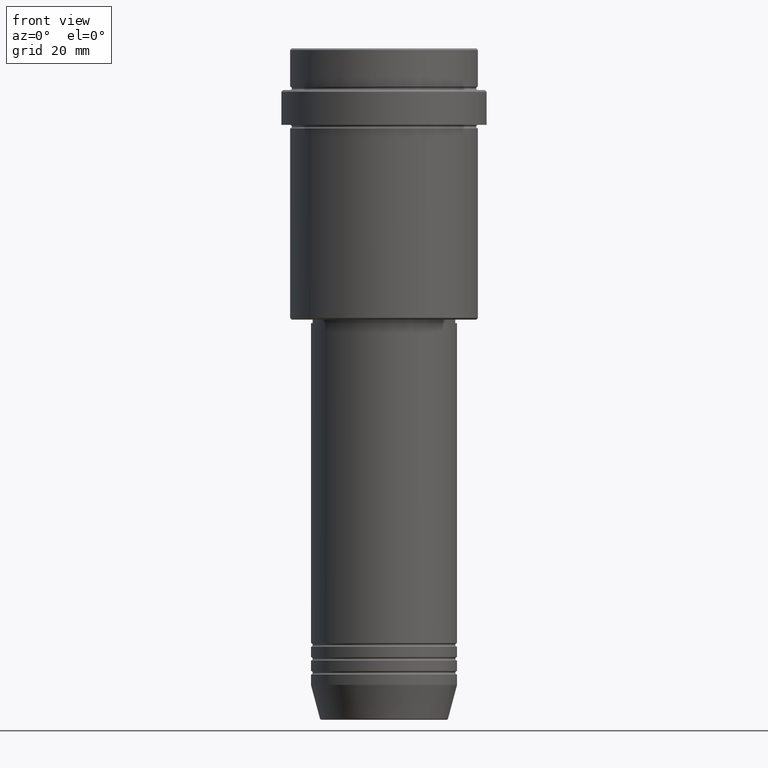
[diagram: clean part render]
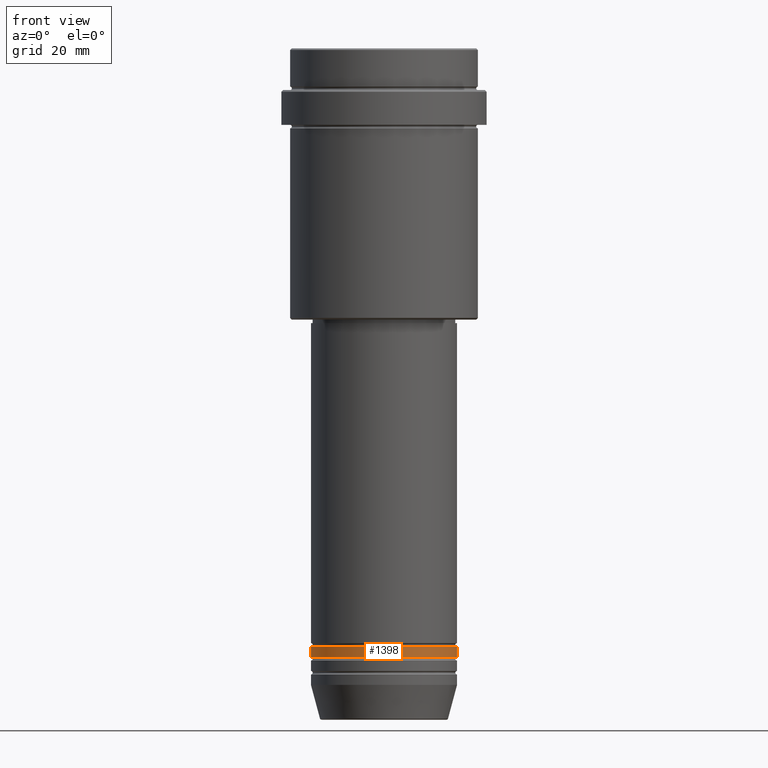
[diagram: same view with one face highlighted and labeled with its STEP entity id]
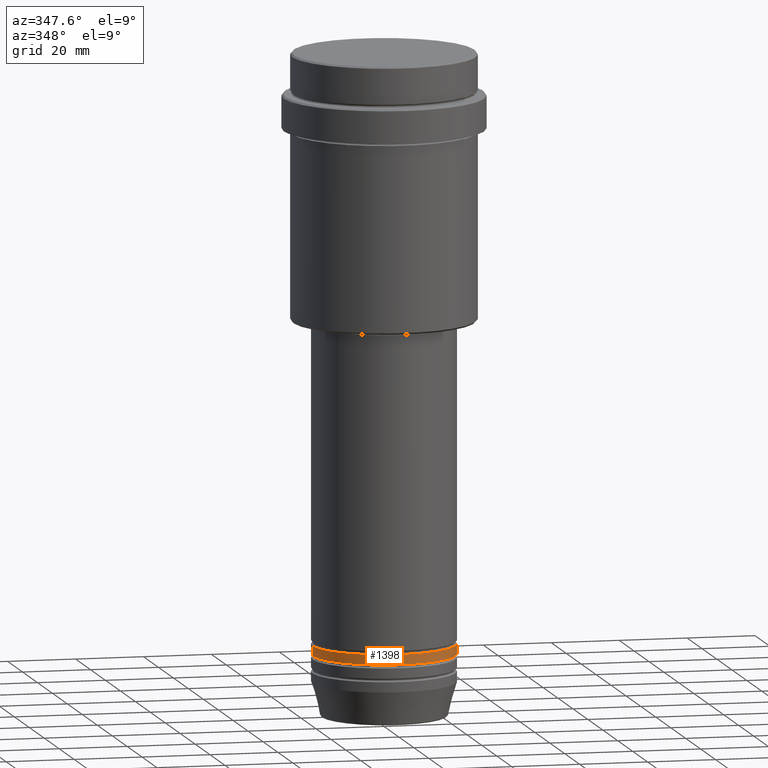
[diagram: same view with one face highlighted and labeled with its STEP entity id]
A machine part, front view. The second image highlights one B-rep face of the part: STEP entity #1398.
A second angle (auxiliary view) of the same face is appended — the face is thin or edge-on in the first view.
In plain terms, the highlighted cylindrical surface (partial cylindrical patch) has radius 21 mm, axis along (-0, -0, 1).
Its self-contained STEP definition (entity closure, byte-faithful):
#79 = CARTESIAN_POINT ( 'NONE',  ( -21.00000000000000000, 2.571758278209441661E-15, 0.000000000000000000 ) ) ;
#137 = ORIENTED_EDGE ( 'NONE', *, *, #332, .F. ) ;
#149 = FACE_OUTER_BOUND ( 'NONE', #250, .T. ) ;
#192 = CARTESIAN_POINT ( 'NONE',  ( -21.00000000000000000, 2.571758278209441661E-15, -171.9999999999999147 ) ) ;
#237 = CARTESIAN_POINT ( 'NONE',  ( 21.00000000000000000, 0.000000000000000000, 0.000000000000000000 ) ) ;
#250 = EDGE_LOOP ( 'NONE', ( #1338, #1057, #295, #137 ) ) ;
#289 = AXIS2_PLACEMENT_3D ( 'NONE', #458, #1342, #779 ) ;
#295 = ORIENTED_EDGE ( 'NONE', *, *, #450, .T. ) ;
#332 = EDGE_CURVE ( 'NONE', #1088, #486, #590, .T. ) ;
#375 = EDGE_CURVE ( 'NONE', #904, #770, #1272, .T. ) ;
#450 = EDGE_CURVE ( 'NONE', #770, #486, #905, .T. ) ;
#458 = CARTESIAN_POINT ( 'NONE',  ( 0.000000000000000000, 0.000000000000000000, -171.9999999999999147 ) ) ;
#486 = VERTEX_POINT ( 'NONE', #924 ) ;
#567 = CYLINDRICAL_SURFACE ( 'NONE', #645, 21.00000000000000000 ) ;
#572 = DIRECTION ( 'NONE',  ( -0.000000000000000000, -0.000000000000000000, 1.000000000000000000 ) ) ;
#590 = CIRCLE ( 'NONE', #289, 21.00000000000000000 ) ;
#645 = AXIS2_PLACEMENT_3D ( 'NONE', #1027, #572, #1033 ) ;
#770 = VERTEX_POINT ( 'NONE', #1208 ) ;
#779 = DIRECTION ( 'NONE',  ( 1.000000000000000000, 0.000000000000000000, 0.000000000000000000 ) ) ;
#845 = DIRECTION ( 'NONE',  ( 1.000000000000000000, 0.000000000000000000, 0.000000000000000000 ) ) ;
#851 = AXIS2_PLACEMENT_3D ( 'NONE', #963, #1399, #845 ) ;
#897 = DIRECTION ( 'NONE',  ( -0.000000000000000000, -0.000000000000000000, 1.000000000000000000 ) ) ;
#904 = VERTEX_POINT ( 'NONE', #1026 ) ;
#905 = LINE ( 'NONE', #237, #949 ) ;
#924 = CARTESIAN_POINT ( 'NONE',  ( 21.00000000000000000, 0.000000000000000000, -171.9999999999999147 ) ) ;
#949 = VECTOR ( 'NONE', #897, 1000.000000000000000 ) ;
#963 = CARTESIAN_POINT ( 'NONE',  ( 0.000000000000000000, 0.000000000000000000, -174.9999999999999147 ) ) ;
#1011 = EDGE_CURVE ( 'NONE', #904, #1088, #1380, .T. ) ;
#1026 = CARTESIAN_POINT ( 'NONE',  ( -21.00000000000000000, 2.571758278209441661E-15, -174.9999999999999147 ) ) ;
#1027 = CARTESIAN_POINT ( 'NONE',  ( 0.000000000000000000, 0.000000000000000000, 0.000000000000000000 ) ) ;
#1033 = DIRECTION ( 'NONE',  ( 1.000000000000000000, 0.000000000000000000, 0.000000000000000000 ) ) ;
#1057 = ORIENTED_EDGE ( 'NONE', *, *, #375, .T. ) ;
#1088 = VERTEX_POINT ( 'NONE', #192 ) ;
#1180 = DIRECTION ( 'NONE',  ( -0.000000000000000000, -0.000000000000000000, 1.000000000000000000 ) ) ;
#1208 = CARTESIAN_POINT ( 'NONE',  ( 21.00000000000000000, 0.000000000000000000, -174.9999999999999147 ) ) ;
#1272 = CIRCLE ( 'NONE', #851, 21.00000000000000000 ) ;
#1328 = VECTOR ( 'NONE', #1180, 1000.000000000000000 ) ;
#1338 = ORIENTED_EDGE ( 'NONE', *, *, #1011, .F. ) ;
#1342 = DIRECTION ( 'NONE',  ( -0.000000000000000000, -0.000000000000000000, 1.000000000000000000 ) ) ;
#1380 = LINE ( 'NONE', #79, #1328 ) ;
#1398 = ADVANCED_FACE ( 'NONE', ( #149 ), #567, .T. ) ;
#1399 = DIRECTION ( 'NONE',  ( -0.000000000000000000, -0.000000000000000000, 1.000000000000000000 ) ) ;